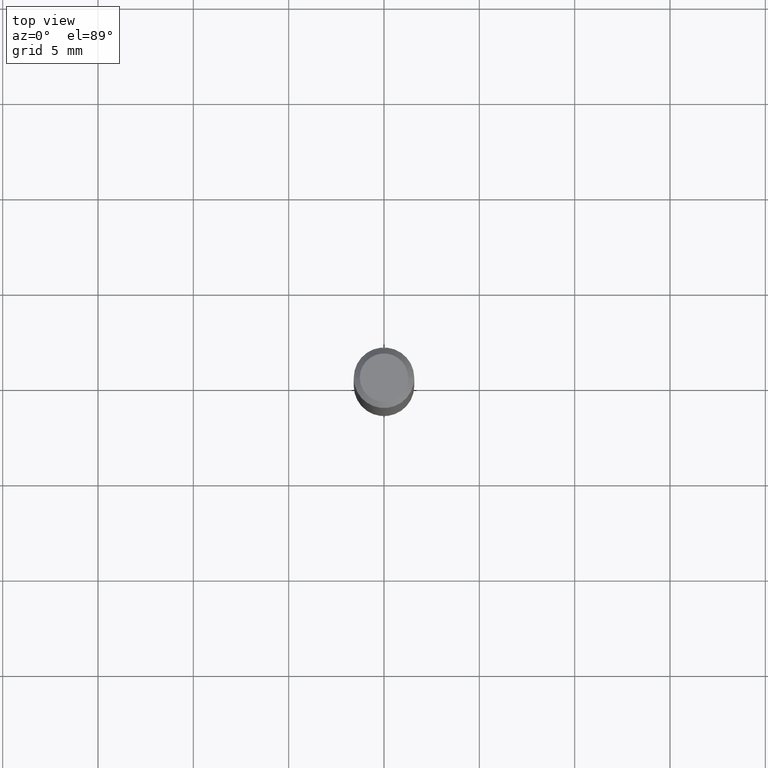
[diagram: clean part render]
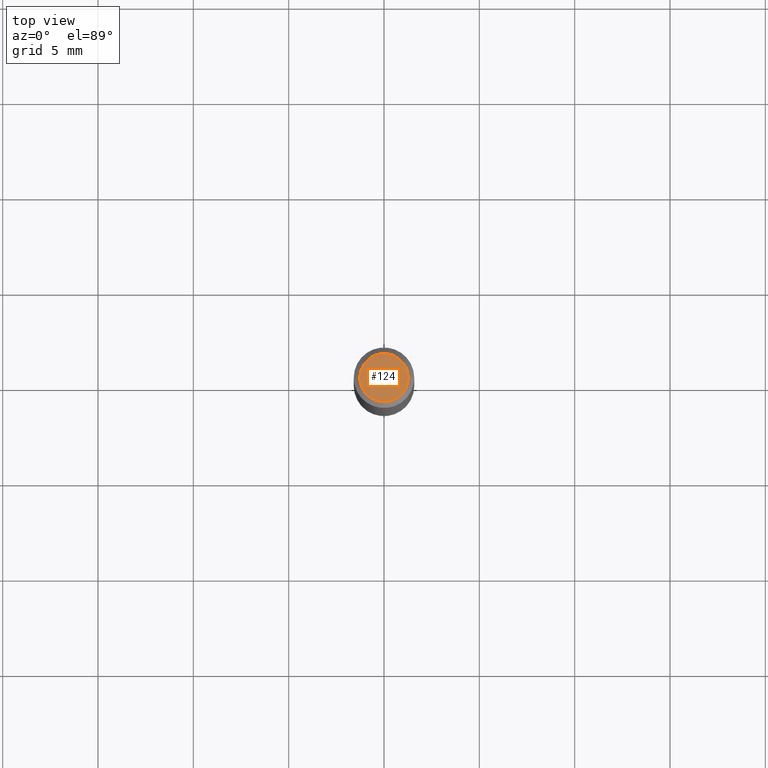
[diagram: same view with one face highlighted and labeled with its STEP entity id]
A machine part, top view. The second image highlights one B-rep face of the part: STEP entity #124.
In plain terms, the highlighted planar face has unit normal (0, -0, -1).
Its self-contained STEP definition (entity closure, byte-faithful):
#37 = AXIS2_PLACEMENT_3D ( 'NONE', #248, #183, #107 ) ;
#53 = AXIS2_PLACEMENT_3D ( 'NONE', #373, #197, #114 ) ;
#73 = DIRECTION ( 'NONE',  ( 2.438088387897960049E-29, -3.491481338843145188E-15, -1.000000000000000000 ) ) ;
#91 = EDGE_LOOP ( 'NONE', ( #460, #347 ) ) ;
#102 = CARTESIAN_POINT ( 'NONE',  ( 1.946643104841063088E-47, -2.779290439833033990E-33, -7.960204194457798443E-19 ) ) ;
#107 = DIRECTION ( 'NONE',  ( 1.000000000000000000, -6.982962677686265922E-15, 4.875957971899673662E-29 ) ) ;
#113 = CIRCLE ( 'NONE', #53, 0.04999999999999999584 ) ;
#114 = DIRECTION ( 'NONE',  ( 1.000000000000000000, -6.982962677686265922E-15, 4.875957971899673662E-29 ) ) ;
#124 = ADVANCED_FACE ( 'NONE', ( #136 ), #434, .F. ) ;
#131 = VERTEX_POINT ( 'NONE', #190 ) ;
#136 = FACE_OUTER_BOUND ( 'NONE', #91, .T. ) ;
#183 = DIRECTION ( 'NONE',  ( -2.445468806185136597E-29, 3.491481338843145583E-15, 1.000000000000000000 ) ) ;
#190 = CARTESIAN_POINT ( 'NONE',  ( -0.04999999999999999584, 3.709698922520826725E-16, -1.592040838894077649E-18 ) ) ;
#197 = DIRECTION ( 'NONE',  ( -2.445468806185136597E-29, 3.491481338843145583E-15, 1.000000000000000000 ) ) ;
#199 = EDGE_CURVE ( 'NONE', #345, #131, #259, .T. ) ;
#226 = DIRECTION ( 'NONE',  ( -1.000000000000000000, 6.982962677686265922E-15, -4.876176775795935793E-29 ) ) ;
#248 = CARTESIAN_POINT ( 'NONE',  ( 3.893286209682126177E-47, -5.558580879666067980E-33, -1.592040838891559689E-18 ) ) ;
#259 = CIRCLE ( 'NONE', #37, 0.04999999999999999584 ) ;
#287 = AXIS2_PLACEMENT_3D ( 'NONE', #102, #73, #226 ) ;
#296 = CARTESIAN_POINT ( 'NONE',  ( 0.04999999999999999584, -4.077247707424184705E-16, -1.592040838888913461E-18 ) ) ;
#315 = EDGE_CURVE ( 'NONE', #131, #345, #113, .T. ) ;
#345 = VERTEX_POINT ( 'NONE', #296 ) ;
#347 = ORIENTED_EDGE ( 'NONE', *, *, #199, .T. ) ;
#373 = CARTESIAN_POINT ( 'NONE',  ( 3.893286209682126177E-47, -5.558580879666067980E-33, -1.592040838891559689E-18 ) ) ;
#434 = PLANE ( 'NONE',  #287 ) ;
#460 = ORIENTED_EDGE ( 'NONE', *, *, #315, .T. ) ;